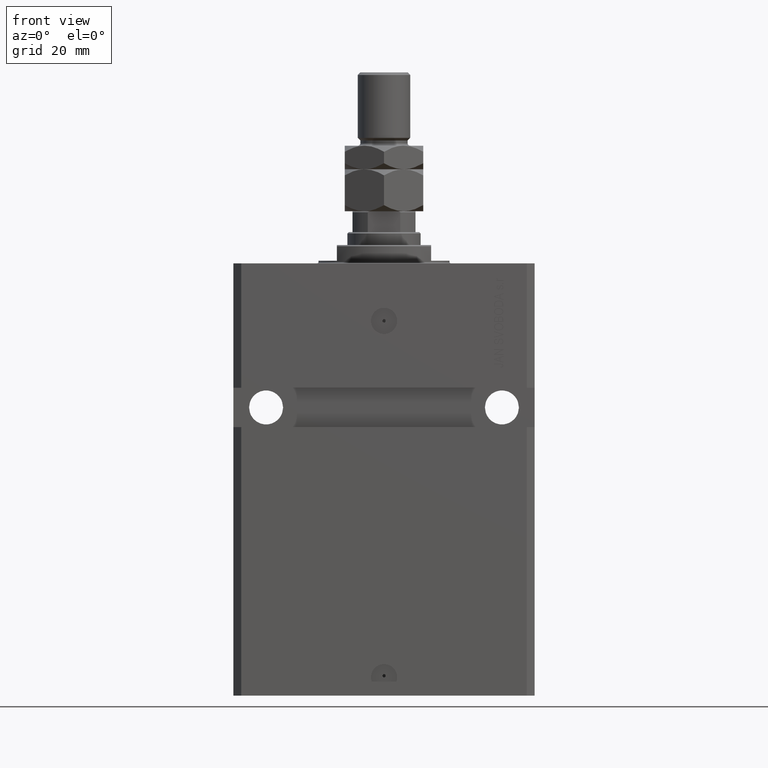
[diagram: clean part render]
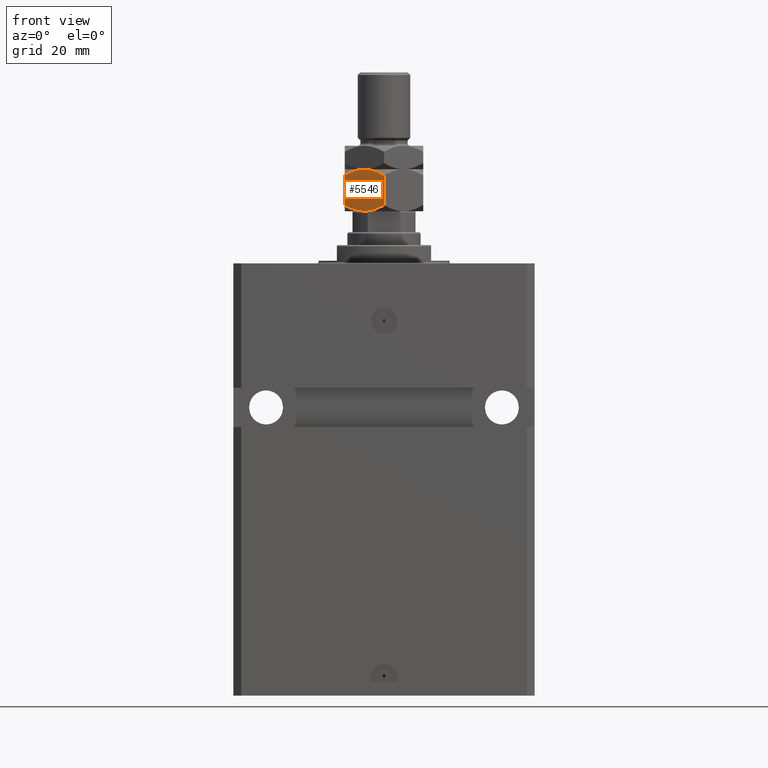
[diagram: same view with one face highlighted and labeled with its STEP entity id]
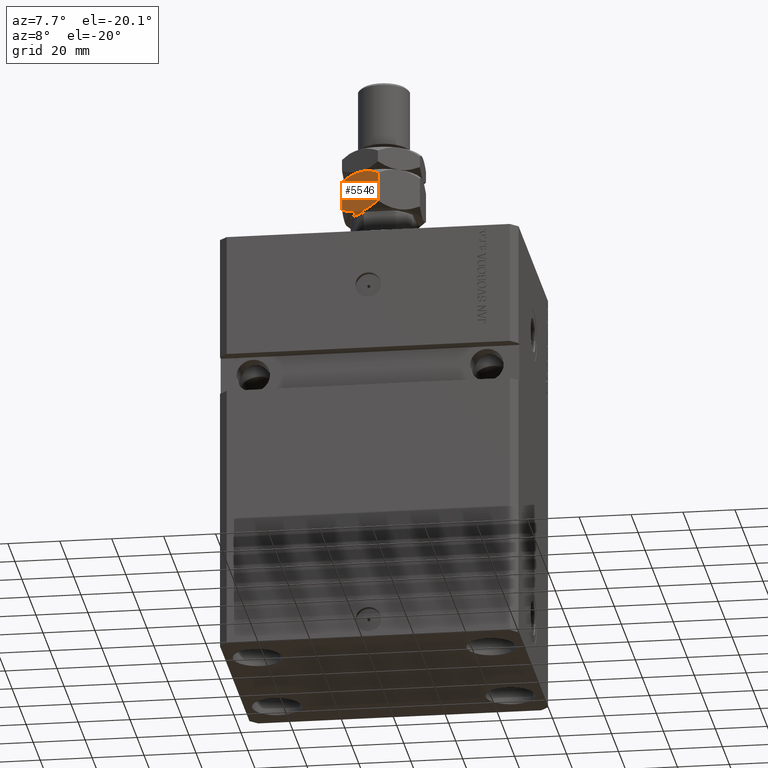
[diagram: same view with one face highlighted and labeled with its STEP entity id]
A machine part, front view. The second image highlights one B-rep face of the part: STEP entity #5546.
A second angle (auxiliary view) of the same face is appended — the face is thin or edge-on in the first view.
In plain terms, the highlighted planar face has unit normal (0.5, 0.866, 0).
Its self-contained STEP definition (entity closure, byte-faithful):
#1760 = CARTESIAN_POINT ( 'NONE',  ( -7.500000000000000000, -12.99038105676658006, 0.000000000000000000 ) ) ;
#3507 = CARTESIAN_POINT ( 'NONE',  ( -3.416099238086855886E-15, -17.32050807568877104, 13.67949192431124317 ) ) ;
#3547 = CARTESIAN_POINT ( 'NONE',  ( -8.823580389329300999, -12.22621156269320331, 15.94046462602529957 ) ) ;
#3550 = VERTEX_POINT ( 'NONE', #23745 ) ;
#5224 = LINE ( 'NONE', #9105, #18469 ) ;
#5546 = ADVANCED_FACE ( 'NONE', ( #39515 ), #13294, .F. ) ;
#5910 = B_SPLINE_CURVE_WITH_KNOTS ( 'NONE', 3,
 ( #44798, #26866, #33417, #41643, #8360, #23220 ),
 .UNSPECIFIED., .F., .F.,
 ( 4, 2, 4 ),
 ( 0.008977392552884445528, 0.01343452311421656012, 0.01789165367554867297 ),
 .UNSPECIFIED. ) ;
#6573 = VECTOR ( 'NONE', #13344, 1000.000000000000000 ) ;
#8360 = CARTESIAN_POINT ( 'NONE',  ( -13.82525345580783060, -9.338494271363318333, 1.642267842169780279 ) ) ;
#8425 = CARTESIAN_POINT ( 'NONE',  ( -6.176419610670697224, -13.75455055083996214, 0.05953537397470286957 ) ) ;
#9105 = CARTESIAN_POINT ( 'NONE',  ( -14.99999999999999645, -8.660254037844389075, 16.00000000000000000 ) ) ;
#9899 = ORIENTED_EDGE ( 'NONE', *, *, #22947, .F. ) ;
#10337 = DIRECTION ( 'NONE',  ( -0.8660254037844385966, 0.4999999999999999445, 0.000000000000000000 ) ) ;
#10799 = CARTESIAN_POINT ( 'NONE',  ( -6.195449321423087241, -13.74356374221446586, 16.00000000000001066 ) ) ;
#11082 = CARTESIAN_POINT ( 'NONE',  ( -12.62116548881249223, -10.03367478323606221, 14.93551393225599533 ) ) ;
#11520 = CARTESIAN_POINT ( 'NONE',  ( -2.796947266322166691E-15, -17.32050807568877104, 2.320508075688761718 ) ) ;
#13294 = PLANE ( 'NONE',  #36223 ) ;
#13344 = DIRECTION ( 'NONE',  ( -0.000000000000000000, -0.000000000000000000, -1.000000000000000000 ) ) ;
#13792 = CARTESIAN_POINT ( 'NONE',  ( -7.500000000000001776, -12.99038105676658361, 16.00000000000000000 ) ) ;
#14709 = CARTESIAN_POINT ( 'NONE',  ( -2.383929548160354628, -15.94414570932928576, 14.93952096862912526 ) ) ;
#15947 = ORIENTED_EDGE ( 'NONE', *, *, #45084, .F. ) ;
#16254 = B_SPLINE_CURVE_WITH_KNOTS ( 'NONE', 3,
 ( #25705, #22045, #11082, #36847, #25939, #3547, #18396, #13792 ),
 .UNSPECIFIED., .F., .F.,
 ( 4, 2, 2, 4 ),
 ( 2.544309033641602453E-07, 0.004488823491893906108, 0.006733108022389176252, 0.008977392552884447263 ),
 .UNSPECIFIED. ) ;
#16267 = VERTEX_POINT ( 'NONE', #1760 ) ;
#18048 = ORIENTED_EDGE ( 'NONE', *, *, #39558, .F. ) ;
#18396 = CARTESIAN_POINT ( 'NONE',  ( -8.156876182308250733, -12.61113341608665905, 16.00000000000000355 ) ) ;
#18469 = VECTOR ( 'NONE', #41917, 1000.000000000000000 ) ;
#18818 = EDGE_CURVE ( 'NONE', #39966, #39370, #5224, .T. ) ;
#19142 = CARTESIAN_POINT ( 'NONE',  ( -1.176108425306644722, -16.64148155974179488, 1.641481559741788665 ) ) ;
#19976 = EDGE_CURVE ( 'NONE', #16267, #39370, #5910, .T. ) ;
#20591 = DIRECTION ( 'NONE',  ( 0.5000000000000000000, 0.8660254037844387076, -0.000000000000000000 ) ) ;
#20709 = CARTESIAN_POINT ( 'NONE',  ( -7.500000000000001776, -12.99038105676658361, 16.00000000000000000 ) ) ;
#21122 = B_SPLINE_CURVE_WITH_KNOTS ( 'NONE', 3,
 ( #36697, #19142, #30800, #45353, #30065, #8425, #45596, #23287 ),
 .UNSPECIFIED., .F., .F.,
 ( 4, 2, 2, 4 ),
 ( 2.544309033648719118E-07, 0.004488823491893905240, 0.006733108022389175384, 0.008977392552884445528 ),
 .UNSPECIFIED. ) ;
#21544 = CARTESIAN_POINT ( 'NONE',  ( -14.99999999999999645, -8.660254037844389075, 16.00000000000000000 ) ) ;
#22045 = CARTESIAN_POINT ( 'NONE',  ( -13.82389157469335750, -9.339280553791368789, 14.35851844025821933 ) ) ;
#22947 = EDGE_CURVE ( 'NONE', #30530, #3550, #30635, .T. ) ;
#23220 = CARTESIAN_POINT ( 'NONE',  ( -14.99999999999999645, -8.660254037844389075, 2.320508075688762606 ) ) ;
#23287 = CARTESIAN_POINT ( 'NONE',  ( -7.500000000000000000, -12.99038105676658006, 0.000000000000000000 ) ) ;
#23745 = CARTESIAN_POINT ( 'NONE',  ( -3.416099238086855886E-15, -17.32050807568877104, 13.67949192431124317 ) ) ;
#25705 = CARTESIAN_POINT ( 'NONE',  ( -14.99999999999999645, -8.660254037844389075, 13.67949192431124139 ) ) ;
#25939 = CARTESIAN_POINT ( 'NONE',  ( -10.11832554202262102, -11.47869010025374692, 15.71619733805371411 ) ) ;
#26866 = CARTESIAN_POINT ( 'NONE',  ( -8.804550678576912759, -12.23719837131869248, -4.878909776184767981E-16 ) ) ;
#28208 = EDGE_CURVE ( 'NONE', #28583, #16267, #21122, .T. ) ;
#28583 = VERTEX_POINT ( 'NONE', #11520 ) ;
#28812 = CARTESIAN_POINT ( 'NONE',  ( -4.913081180497412603, -14.48393933357810504, 15.76967007806078946 ) ) ;
#29047 = CARTESIAN_POINT ( 'NONE',  ( -1.174746544192163844, -16.64226784216984711, 14.35773215783022572 ) ) ;
#29103 = ORIENTED_EDGE ( 'NONE', *, *, #28208, .F. ) ;
#29530 = CARTESIAN_POINT ( 'NONE',  ( -7.500000000000001776, -12.99038105676658361, 16.00000000000000000 ) ) ;
#30065 = CARTESIAN_POINT ( 'NONE',  ( -4.881674457977378090, -14.50207201327941320, 0.2838026619462943323 ) ) ;
#30530 = VERTEX_POINT ( 'NONE', #20709 ) ;
#30635 = B_SPLINE_CURVE_WITH_KNOTS ( 'NONE', 3,
 ( #29530, #10799, #28812, #14709, #29047, #3507 ),
 .UNSPECIFIED., .F., .F.,
 ( 4, 2, 4 ),
 ( 0.008977392552884447263, 0.01343452311421656359, 0.01789165367554867991 ),
 .UNSPECIFIED. ) ;
#30800 = CARTESIAN_POINT ( 'NONE',  ( -2.378834511187505996, -15.94708733029708725, 1.064486067744005560 ) ) ;
#31566 = LINE ( 'NONE', #31807, #6573 ) ;
#31807 = CARTESIAN_POINT ( 'NONE',  ( -3.035766082959412415E-15, -17.32050807568877104, 16.00000000000000000 ) ) ;
#33417 = CARTESIAN_POINT ( 'NONE',  ( -10.08691881950258740, -11.49682277995505331, 0.2303299219392165864 ) ) ;
#33497 = CARTESIAN_POINT ( 'NONE',  ( -14.99999999999999645, -8.660254037844389075, 13.67949192431124139 ) ) ;
#36223 = AXIS2_PLACEMENT_3D ( 'NONE', #21544, #20591, #10337 ) ;
#36697 = CARTESIAN_POINT ( 'NONE',  ( -2.796947266322166691E-15, -17.32050807568877104, 2.320508075688761718 ) ) ;
#36726 = CARTESIAN_POINT ( 'NONE',  ( -14.99999999999999645, -8.660254037844389075, 2.320508075688762606 ) ) ;
#36847 = CARTESIAN_POINT ( 'NONE',  ( -10.75222765045651308, -11.11270654730956409, 15.55242859148697576 ) ) ;
#39370 = VERTEX_POINT ( 'NONE', #36726 ) ;
#39515 = FACE_OUTER_BOUND ( 'NONE', #44351, .T. ) ;
#39558 = EDGE_CURVE ( 'NONE', #3550, #28583, #31566, .T. ) ;
#39602 = ORIENTED_EDGE ( 'NONE', *, *, #18818, .T. ) ;
#39966 = VERTEX_POINT ( 'NONE', #33497 ) ;
#41643 = CARTESIAN_POINT ( 'NONE',  ( -12.61607045183964715, -10.03661640420386902, 1.060479031370877845 ) ) ;
#41917 = DIRECTION ( 'NONE',  ( -0.000000000000000000, -0.000000000000000000, -1.000000000000000000 ) ) ;
#44351 = EDGE_LOOP ( 'NONE', ( #29103, #18048, #9899, #15947, #39602, #47716 ) ) ;
#44798 = CARTESIAN_POINT ( 'NONE',  ( -7.500000000000000000, -12.99038105676658006, 0.000000000000000000 ) ) ;
#45084 = EDGE_CURVE ( 'NONE', #39966, #30530, #16254, .T. ) ;
#45353 = CARTESIAN_POINT ( 'NONE',  ( -4.247772349543487813, -14.86805556622358893, 0.4475714085130264031 ) ) ;
#45596 = CARTESIAN_POINT ( 'NONE',  ( -6.843123817691746602, -13.36962869744650284, -3.760826285809093999E-16 ) ) ;
#47716 = ORIENTED_EDGE ( 'NONE', *, *, #19976, .F. ) ;